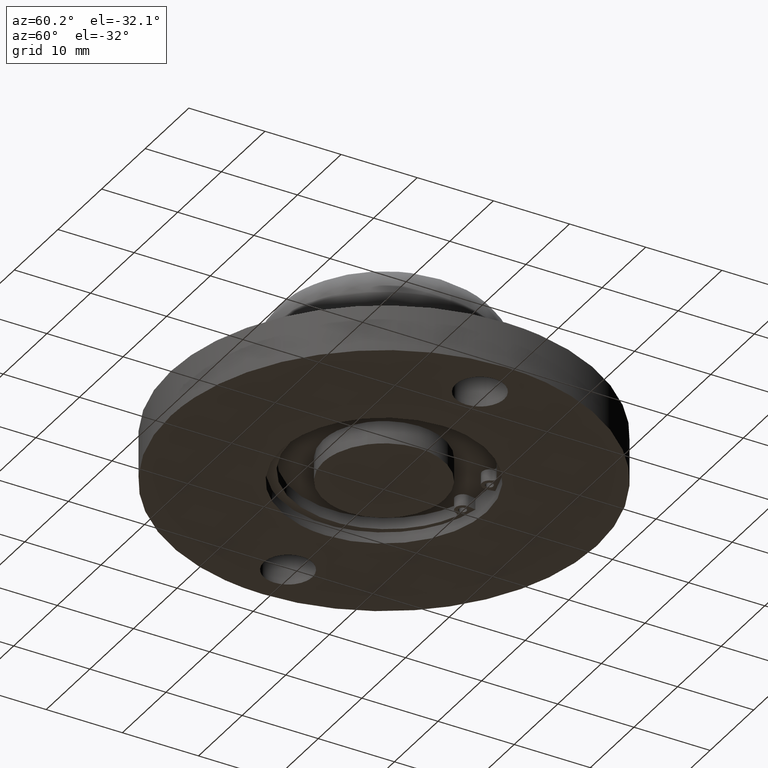
[diagram: clean part render]
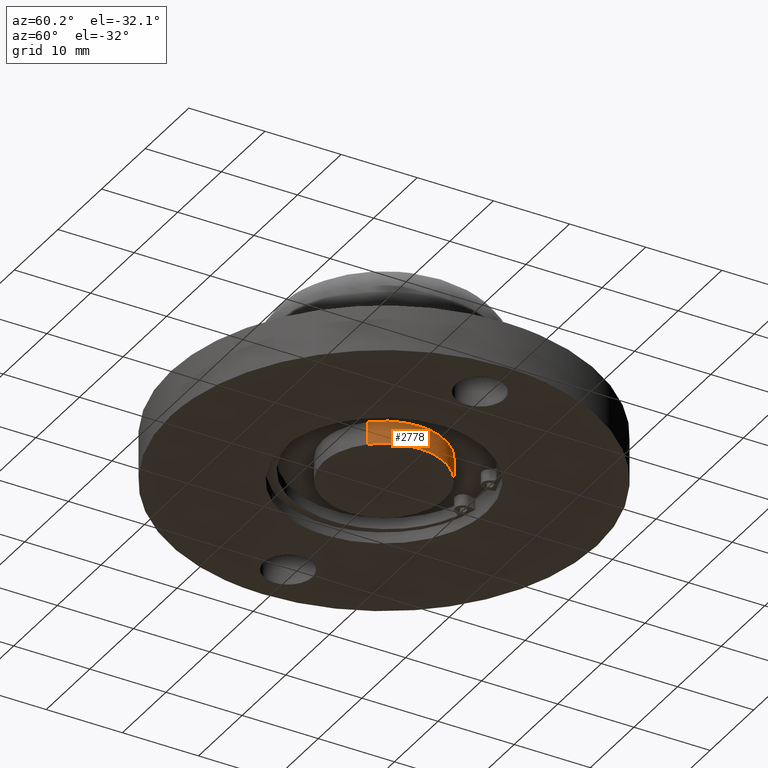
[diagram: same view with one face highlighted and labeled with its STEP entity id]
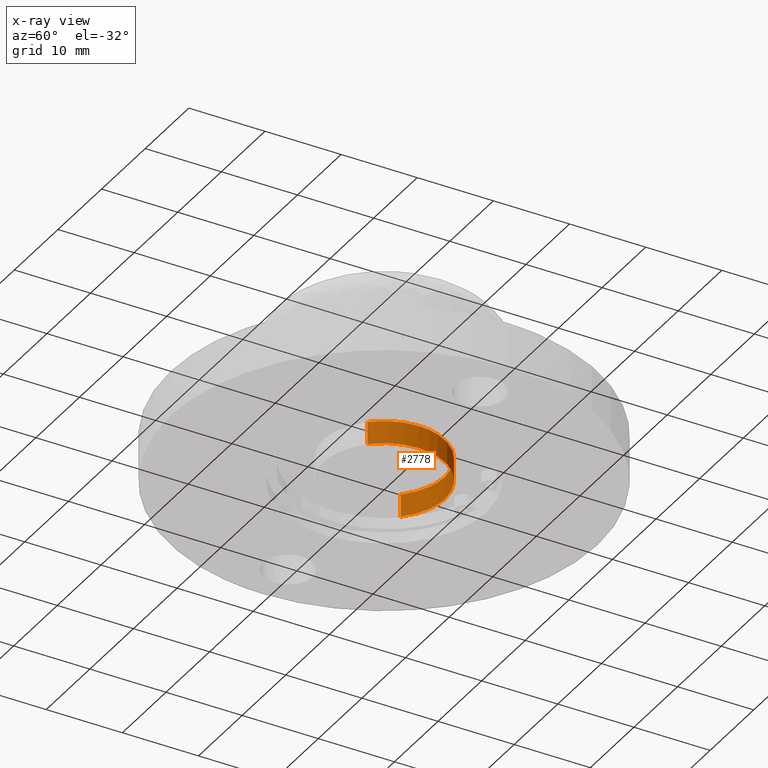
[diagram: x-ray of the same camera — body ghosted, the highlighted face saturated]
A machine part, auxiliary view. The second image highlights one B-rep face of the part: STEP entity #2778.
The next image is the same camera in x-ray: the body ghosted, the highlighted face saturated — about 0% of this face is hidden behind the body in this view.
In plain terms, the highlighted face is a freeform B-spline surface patch.
Its self-contained STEP definition (entity closure, byte-faithful):
#2134=CARTESIAN_POINT('',(7.999999999999915,0.0,1.110223E-013));
#2135=VERTEX_POINT('',#2134);
#2136=CARTESIAN_POINT('',(5.802994814840766,-5.506836509249681,3.371983E-012));
#2137=VERTEX_POINT('',#2136);
#2138=CARTESIAN_POINT('',(7.999999999999915,0.0,1.110223E-013));
#2139=CARTESIAN_POINT('',(8.000077456135555,-0.537787056939472,4.309707E-013));
#2140=CARTESIAN_POINT('',(7.913521998635408,-1.391870806450806,9.384937E-013));
#2141=CARTESIAN_POINT('',(7.545630818440568,-2.769657965161141,1.755634E-012));
#2142=CARTESIAN_POINT('',(6.926263304644805,-4.130630900208910,2.561025E-012));
#2143=CARTESIAN_POINT('',(6.216821365707030,-5.070926294838474,3.115516E-012));
#2144=CARTESIAN_POINT('',(5.802994814840766,-5.506836509249681,3.371983E-012));
#2145=B_SPLINE_CURVE_WITH_KNOTS('',3,(#2138,#2139,#2140,#2141,#2142,#2143,#2144),.UNSPECIFIED.,.F.,.U.,(4,1,1,1,4),(7.122985E-009,1.613348348271518,2.562385359381918,4.270625849032834,6.073781377151684),.UNSPECIFIED.);
#2146=EDGE_CURVE('',#2135,#2137,#2145,.T.);
#2177=CARTESIAN_POINT('',(-5.802994814840954,5.506836509249697,3.291471E-012));
#2178=VERTEX_POINT('',#2177);
#2189=CARTESIAN_POINT('',(0.000000710805191,7.999999999999968,1.110223E-013));
#2190=VERTEX_POINT('',#2189);
#2191=CARTESIAN_POINT('',(-5.802994814840954,5.506836509249697,3.291471E-012));
#2192=CARTESIAN_POINT('',(-5.500409930169246,5.825733121473762,3.126944E-012));
#2193=CARTESIAN_POINT('',(-4.817194592773610,6.436079431307198,2.754692E-012));
#2194=CARTESIAN_POINT('',(-3.751589866543852,7.101134883764419,2.172104E-012));
#2195=CARTESIAN_POINT('',(-2.568559390760150,7.609408677438482,1.523720E-012));
#2196=CARTESIAN_POINT('',(-1.352627400906472,7.924578817442589,8.558665E-013));
#2197=CARTESIAN_POINT('',(-0.439604427425027,8.000024090455815,3.532675E-013));
#2198=CARTESIAN_POINT('',(0.000000710805191,7.999999999999968,1.110223E-013));
#2199=B_SPLINE_CURVE_WITH_KNOTS('',3,(#2191,#2192,#2193,#2194,#2195,#2196,#2197,#2198),.UNSPECIFIED.,.F.,.U.,(4,1,1,1,1,4),(4.038115E-009,1.318823256166779,2.739095580675714,3.753573343345607,5.173845667862869,6.492668919993652),.UNSPECIFIED.);
#2200=EDGE_CURVE('',#2178,#2190,#2199,.T.);
#2202=CARTESIAN_POINT('',(0.000000710805191,7.999999999999968,1.110223E-013));
#2203=CARTESIAN_POINT('',(0.589055319635816,8.000099804903774,1.151104E-013));
#2204=CARTESIAN_POINT('',(1.505300729850739,7.898325302900835,1.207619E-013));
#2205=CARTESIAN_POINT('',(2.764872543278387,7.533022149441172,1.269671E-013));
#2206=CARTESIAN_POINT('',(3.844840031109829,7.054333878907922,1.311394E-013));
#2207=CARTESIAN_POINT('',(4.891057992211819,6.373690445762065,1.336760E-013));
#2208=CARTESIAN_POINT('',(5.960896260813771,5.404128769390192,1.343719E-013));
#2209=CARTESIAN_POINT('',(6.858044016825770,4.225022633764947,1.324154E-013));
#2210=CARTESIAN_POINT('',(7.484232874215961,2.921616488824483,1.277162E-013));
#2211=CARTESIAN_POINT('',(7.894664738078984,1.538016014239816,1.209635E-013));
#2212=CARTESIAN_POINT('',(8.000120081226527,0.589057698419210,1.151105E-013));
#2213=CARTESIAN_POINT('',(7.999999999999915,0.0,1.110223E-013));
#2214=B_SPLINE_CURVE_WITH_KNOTS('',3,(#2202,#2203,#2204,#2205,#2206,#2207,#2208,#2209,#2210,#2211,#2212,#2213),.UNSPECIFIED.,.F.,.U.,(4,1,1,1,1,1,1,1,1,4),(8.767456E-009,1.767144346406091,2.748910868754702,3.927023506440676,5.301479958751252,6.479573356972422,8.246720005498405,9.719364258487397,10.799306031342940,12.566449062376879),.UNSPECIFIED.);
#2215=EDGE_CURVE('',#2190,#2135,#2214,.T.);
#2652=CARTESIAN_POINT('',(5.802994815140657,-5.506836508933661,3.0));
#2653=VERTEX_POINT('',#2652);
#2654=CARTESIAN_POINT('',(5.802994815140657,-5.506836508933661,3.0));
#2655=CARTESIAN_POINT('',(5.802994814840766,-5.506836509249681,3.371983E-012));
#2656=QUASI_UNIFORM_CURVE('',1,(#2654,#2655),.UNSPECIFIED.,.F.,.U.);
#2657=EDGE_CURVE('',#2653,#2137,#2656,.T.);
#2690=CARTESIAN_POINT('',(-5.802994815140845,5.506836508933677,3.0));
#2691=VERTEX_POINT('',#2690);
#2703=CARTESIAN_POINT('',(-5.802994815140845,5.506836508933677,3.0));
#2704=CARTESIAN_POINT('',(-5.802994814840954,5.506836509249697,3.291471E-012));
#2705=QUASI_UNIFORM_CURVE('',1,(#2703,#2704),.UNSPECIFIED.,.F.,.U.);
#2706=EDGE_CURVE('',#2691,#2178,#2705,.T.);
#2713=CARTESIAN_POINT('',(-5.802994968098385,5.506836605550030,3.075000000000000));
#2714=CARTESIAN_POINT('',(-0.296158362548354,11.309831573648330,3.075000000000000));
#2715=CARTESIAN_POINT('',(5.506836605549945,5.802994968098299,3.075000000000000));
#2716=CARTESIAN_POINT('',(11.309831573648244,0.296158362548269,3.075000000000000));
#2717=CARTESIAN_POINT('',(5.802994968098214,-5.506836605550030,3.075000000000000));
#2718=CARTESIAN_POINT('',(-5.802994968098385,5.506836605550030,-0.076875000000000));
#2719=CARTESIAN_POINT('',(-0.296158362548354,11.309831573648330,-0.076875000000000));
#2720=CARTESIAN_POINT('',(5.506836605549945,5.802994968098299,-0.076875000000000));
#2721=CARTESIAN_POINT('',(11.309831573648244,0.296158362548269,-0.076875000000000));
#2722=CARTESIAN_POINT('',(5.802994968098214,-5.506836605550030,-0.076875000000000));
#2730=(BOUNDED_SURFACE()B_SPLINE_SURFACE(2,1,((#2713,#2718),(#2714,#2719),(#2715,#2720),(#2716,#2721),(#2717,#2722)),.UNSPECIFIED.,.F.,.F.,.U.)B_SPLINE_SURFACE_WITH_KNOTS((3,2,3),(2,2),(0.0,13.254833995939039,26.509667991878079),(0.0,3.151875000000001),.UNSPECIFIED.)GEOMETRIC_REPRESENTATION_ITEM()RATIONAL_B_SPLINE_SURFACE(((1.0,1.0),(0.707106781186548,0.707106781186548),(1.0,1.0),(0.707106781186548,0.707106781186548),(1.0,1.0)))REPRESENTATION_ITEM('')SURFACE());
#2731=ORIENTED_EDGE('',*,*,#2146,.F.);
#2732=ORIENTED_EDGE('',*,*,#2215,.F.);
#2733=ORIENTED_EDGE('',*,*,#2200,.F.);
#2734=ORIENTED_EDGE('',*,*,#2706,.F.);
#2735=CARTESIAN_POINT('',(0.000000710805191,7.999999999999968,3.0));
#2736=VERTEX_POINT('',#2735);
#2737=CARTESIAN_POINT('',(-5.802994815140845,5.506836508933677,3.0));
#2738=CARTESIAN_POINT('',(-5.407345121877357,5.923900657298877,2.999999999999996));
#2739=CARTESIAN_POINT('',(-4.603391475962766,6.606091983838425,3.000000000000004));
#2740=CARTESIAN_POINT('',(-3.327370624867881,7.315193709111927,2.999999999999991));
#2741=CARTESIAN_POINT('',(-1.825941542603284,7.850394189414865,3.000000000000010));
#2742=CARTESIAN_POINT('',(-0.710158588588274,8.000226722998788,2.999999999999990));
#2743=CARTESIAN_POINT('',(0.000000710805191,7.999999999999968,3.0));
#2744=B_SPLINE_CURVE_WITH_KNOTS('',3,(#2737,#2738,#2739,#2740,#2741,#2742,#2743),.UNSPECIFIED.,.F.,.U.,(4,1,1,1,4),(4.038570E-009,1.724615198952475,3.144886887959852,4.362261618742826,6.492668920429318),.UNSPECIFIED.);
#2745=EDGE_CURVE('',#2691,#2736,#2744,.T.);
#2746=ORIENTED_EDGE('',*,*,#2745,.T.);
#2747=CARTESIAN_POINT('',(7.999999999999915,0.0,3.0));
#2748=VERTEX_POINT('',#2747);
#2749=CARTESIAN_POINT('',(0.000000710805191,7.999999999999968,3.0));
#2750=CARTESIAN_POINT('',(0.589055522622106,8.000100148445585,2.999999999999997));
#2751=CARTESIAN_POINT('',(1.505300086233532,7.898324205403545,3.000000000000003));
#2752=CARTESIAN_POINT('',(2.764874202378265,7.533024981033868,2.999999999999994));
#2753=CARTESIAN_POINT('',(3.664836090851267,7.134097148317932,3.000000000000007));
#2754=CARTESIAN_POINT('',(4.620342883541731,6.561395786652540,2.999999999999978));
#2755=CARTESIAN_POINT('',(5.594846528427892,5.781536843500526,3.000000000000039));
#2756=CARTESIAN_POINT('',(6.518402323997904,4.710859333588379,2.999999999999919));
#2757=CARTESIAN_POINT('',(7.136417006392021,3.665153295106704,3.000000000000141));
#2758=CARTESIAN_POINT('',(7.549500609414299,2.701485955068433,2.999999999999893));
#2759=CARTESIAN_POINT('',(7.894685373378924,1.538024942756719,3.000000000000084));
#2760=CARTESIAN_POINT('',(8.000113672288798,0.589055036311069,2.999999999999969));
#2761=CARTESIAN_POINT('',(7.999999999999915,0.0,3.0));
#2762=B_SPLINE_CURVE_WITH_KNOTS('',3,(#2749,#2750,#2751,#2752,#2753,#2754,#2755,#2756,#2757,#2758,#2759,#2760,#2761),.UNSPECIFIED.,.F.,.U.,(4,1,1,1,1,1,1,1,1,1,4),(8.767456E-009,1.767144346406091,2.748910868754702,3.927023506440676,4.712431316319320,6.086874608580835,7.657665101875031,8.933956503672963,9.719364258487397,10.799306031342940,12.566449062376879),.UNSPECIFIED.);
#2763=EDGE_CURVE('',#2736,#2748,#2762,.T.);
#2764=ORIENTED_EDGE('',*,*,#2763,.T.);
#2765=CARTESIAN_POINT('',(7.999999999999915,0.0,3.0));
#2766=CARTESIAN_POINT('',(8.000160533380971,-0.664331343321083,3.000000000000004));
#2767=CARTESIAN_POINT('',(7.853352546066190,-1.834705146422577,2.999999999999997));
#2768=CARTESIAN_POINT('',(7.306727812442355,-3.360364981797559,3.000000000000003));
#2769=CARTESIAN_POINT('',(6.626137639286714,-4.543546066854337,2.999999999999989));
#2770=CARTESIAN_POINT('',(6.086091661490534,-5.208545516575335,3.000000000000004));
#2771=CARTESIAN_POINT('',(5.802994815140657,-5.506836508933661,3.0));
#2772=B_SPLINE_CURVE_WITH_KNOTS('',3,(#2765,#2766,#2767,#2768,#2769,#2770,#2771),.UNSPECIFIED.,.F.,.U.,(4,1,1,1,4),(7.122907E-009,1.992963619030748,3.511396024642490,4.840046219914263,6.073781376716013),.UNSPECIFIED.);
#2773=EDGE_CURVE('',#2748,#2653,#2772,.T.);
#2774=ORIENTED_EDGE('',*,*,#2773,.T.);
#2775=ORIENTED_EDGE('',*,*,#2657,.T.);
#2776=EDGE_LOOP('',(#2731,#2732,#2733,#2734,#2746,#2764,#2774,#2775));
#2777=FACE_OUTER_BOUND('',#2776,.T.);
#2778=ADVANCED_FACE('',(#2777),#2730,.T.);